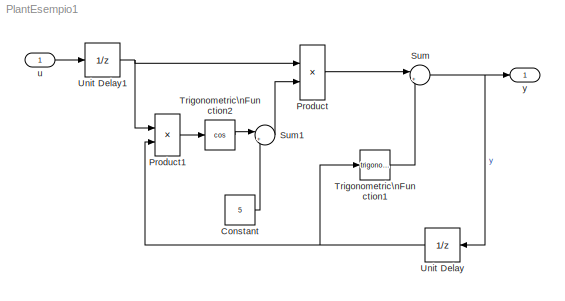
MODEL PlantEsempio1
KIND model
BLOCK [Constant] Constant
  Value = 5
BLOCK [Product] Product
  InputSameDT = off
  OutDataTypeMode = Inherit via internal rule
  Ports = [2, 1]
  SaturateOnIntegerOverflow = off
BLOCK [Product] Product1
  InputSameDT = off
  OutDataTypeMode = Inherit via internal rule
  Ports = [2, 1]
  SaturateOnIntegerOverflow = off
BLOCK [Sum] Sum
  IconShape = round
  InputSameDT = off
  Inputs = |++
  OutDataTypeMode = Inherit via internal rule
  Ports = [2, 1]
  SaturateOnIntegerOverflow = off
BLOCK [Sum] Sum1
  IconShape = round
  InputSameDT = off
  Inputs = |++
  OutDataTypeMode = Inherit via internal rule
  Ports = [2, 1]
  SaturateOnIntegerOverflow = off
BLOCK [Trigonometry] Trigonometric\nFunction1
  Ports = [1, 1]
BLOCK [Trigonometry] Trigonometric\nFunction2
  Operator = cos
  Ports = [1, 1]
BLOCK [UnitDelay] Unit Delay
BLOCK [UnitDelay] Unit Delay1
BLOCK [Inport] u
  IconDisplay = Port number
  LatchInput = off
  Port = 1
BLOCK [Outport] y
  BusOutputAsStruct = off
  IconDisplay = Port number
LINE Constant:1 -> Sum1:2
LINE Product1:1 -> Trigonometric\nFunction2:1
LINE Product:1 -> Sum:1
LINE Sum1:1 -> Product:2
NET Sum:1 -> Unit Delay:1, y:1
LINE Trigonometric\nFunction1:1 -> Sum:2
LINE Trigonometric\nFunction2:1 -> Sum1:1
NET Unit Delay1:1 -> Product1:1, Product:1
NET Unit Delay:1 -> Product1:2, Trigonometric\nFunction1:1
LINE u:1 -> Unit Delay1:1
note: NET lines group one-source signal fan-out (src -> all destinations, sorted); 1:1 wires keep LINE
